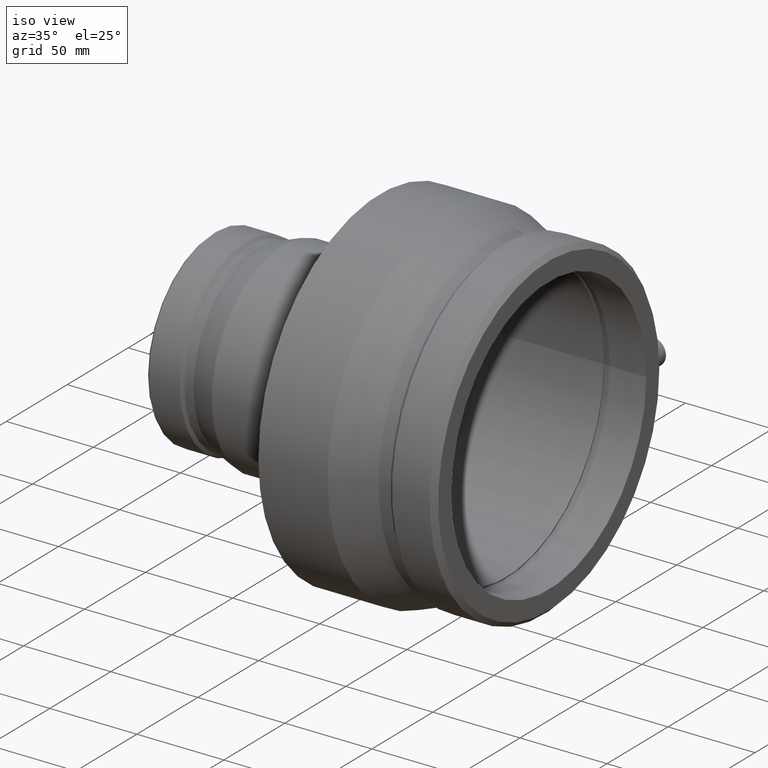
[diagram: clean part render]
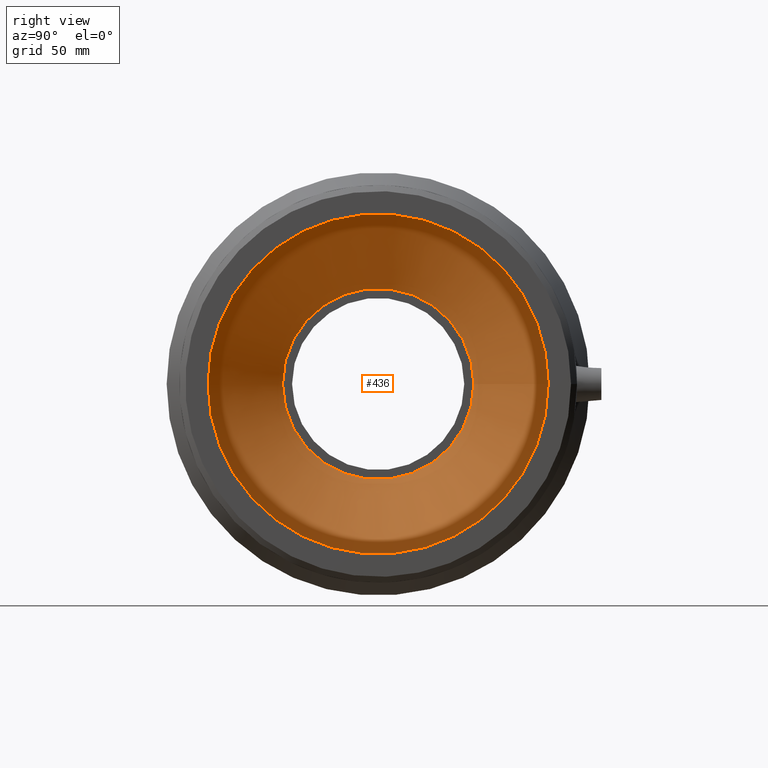
[diagram: tour spotlight — one face highlighted and labeled with its STEP entity id]
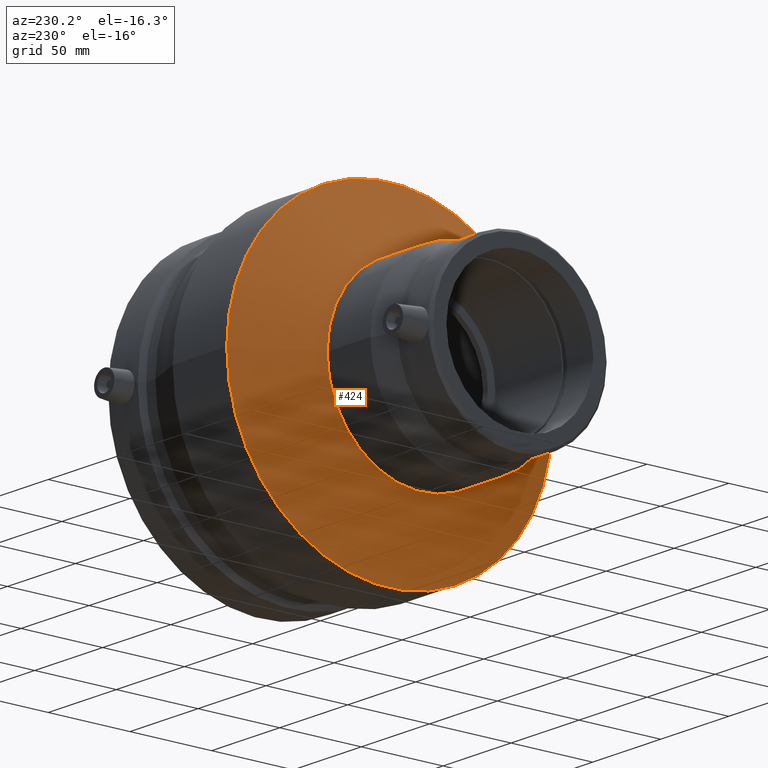
[diagram: tour spotlight — one face highlighted and labeled with its STEP entity id]
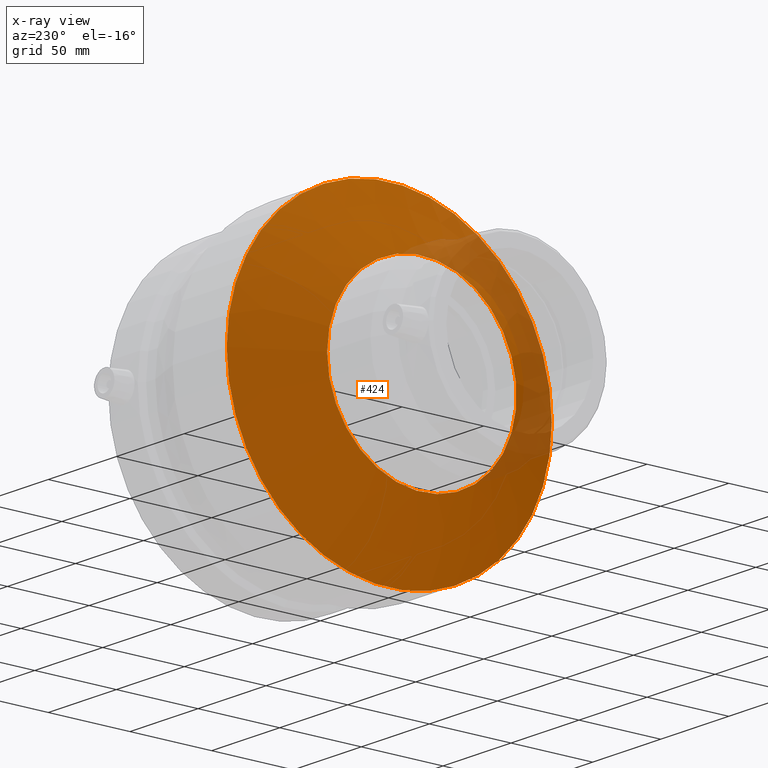
[diagram: x-ray of the same camera — body ghosted, this tour face saturated]
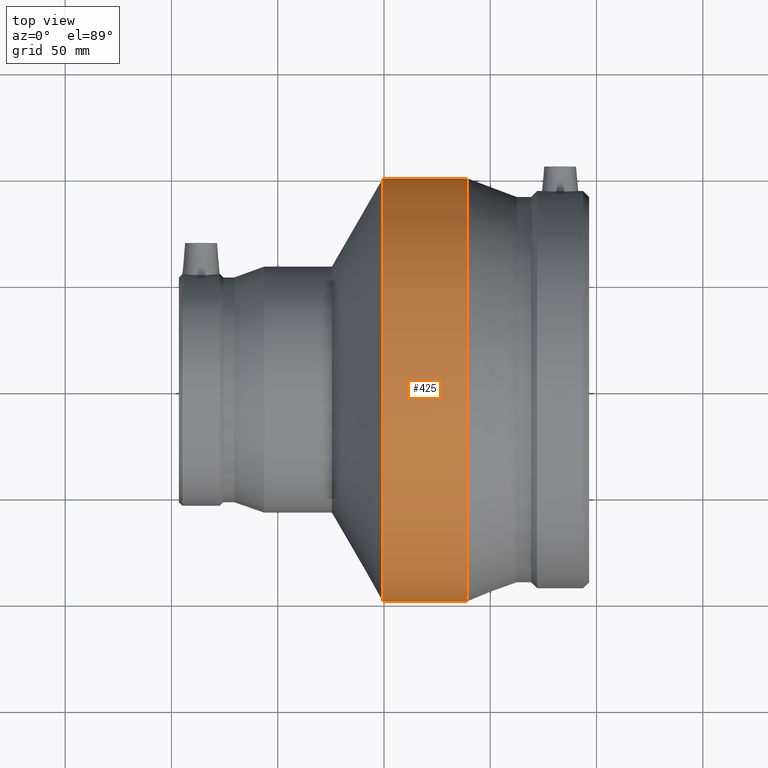
[diagram: tour spotlight — one face highlighted and labeled with its STEP entity id]
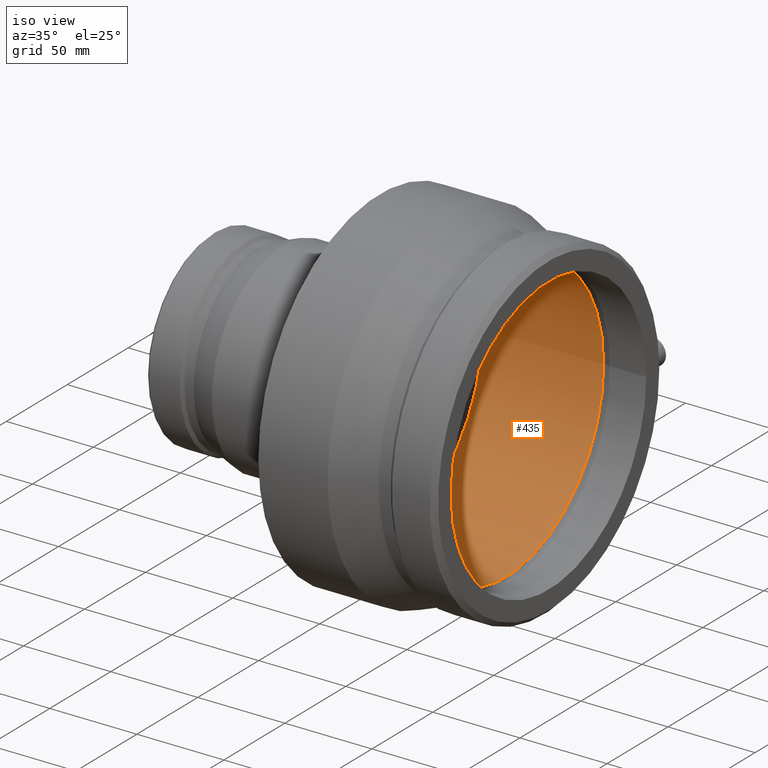
[diagram: tour spotlight — one face highlighted and labeled with its STEP entity id]
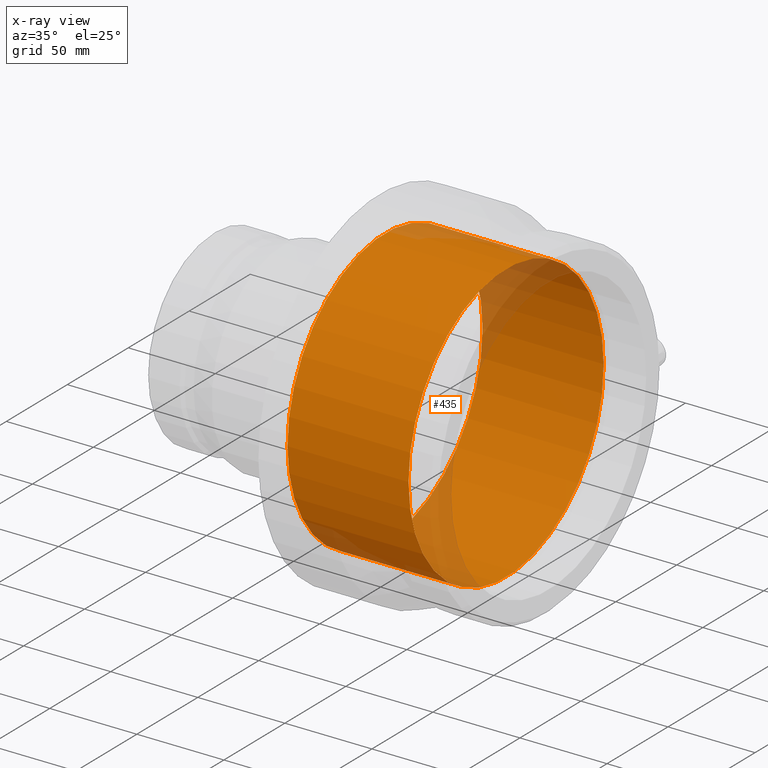
[diagram: x-ray of the same camera — body ghosted, this tour face saturated]
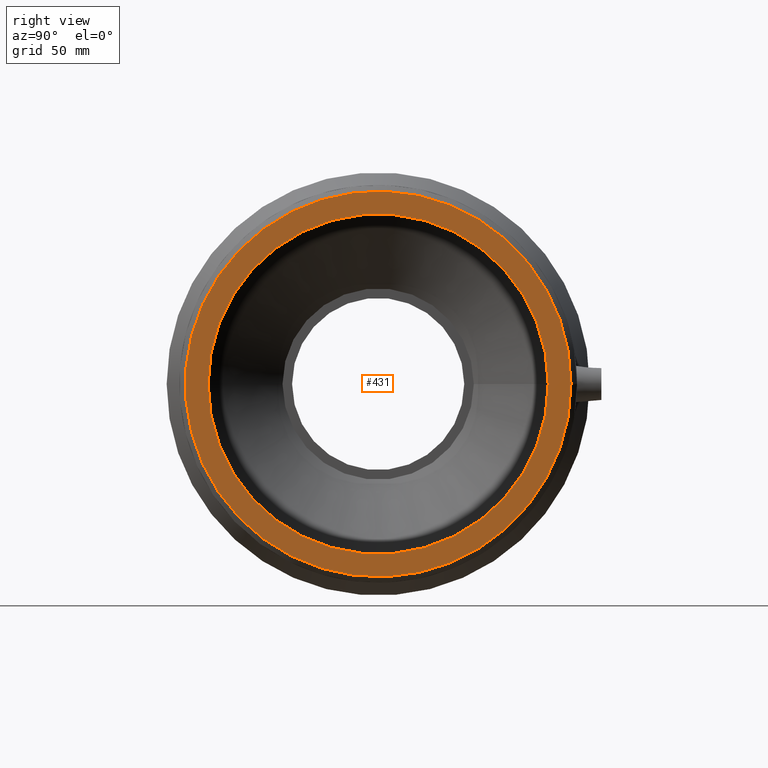
[diagram: tour spotlight — one face highlighted and labeled with its STEP entity id]
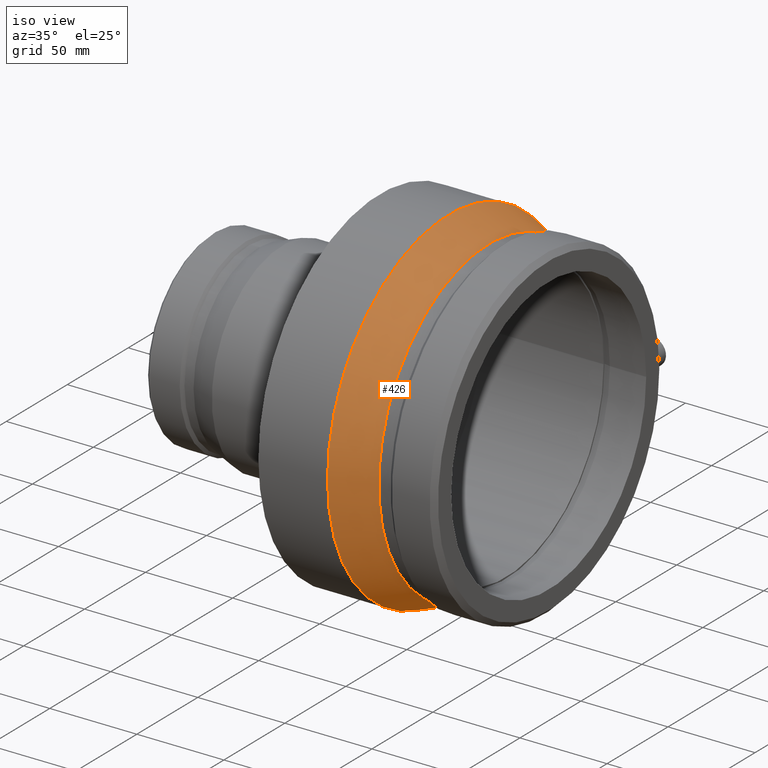
[diagram: tour spotlight — one face highlighted and labeled with its STEP entity id]
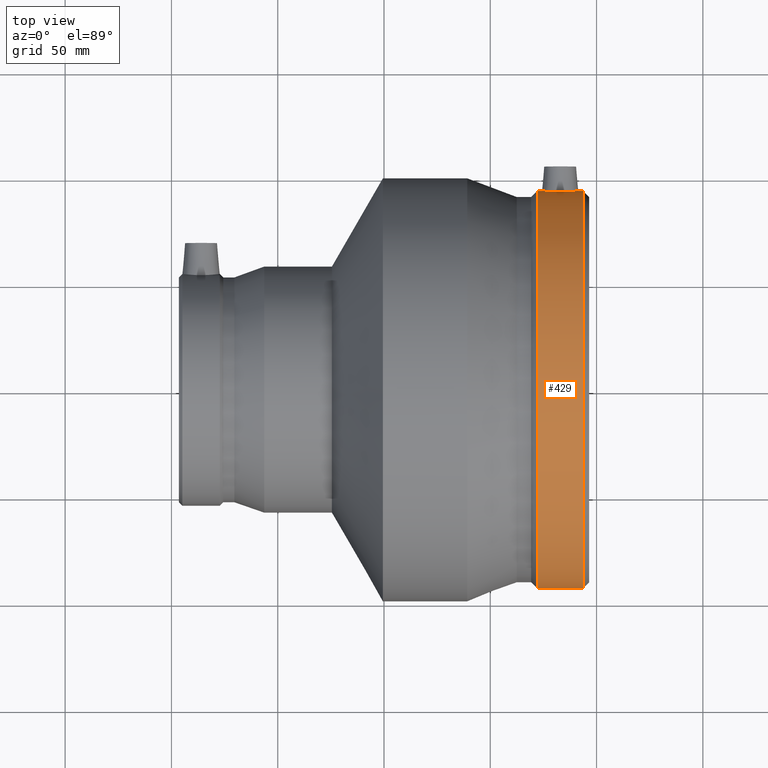
[diagram: tour spotlight — one face highlighted and labeled with its STEP entity id]
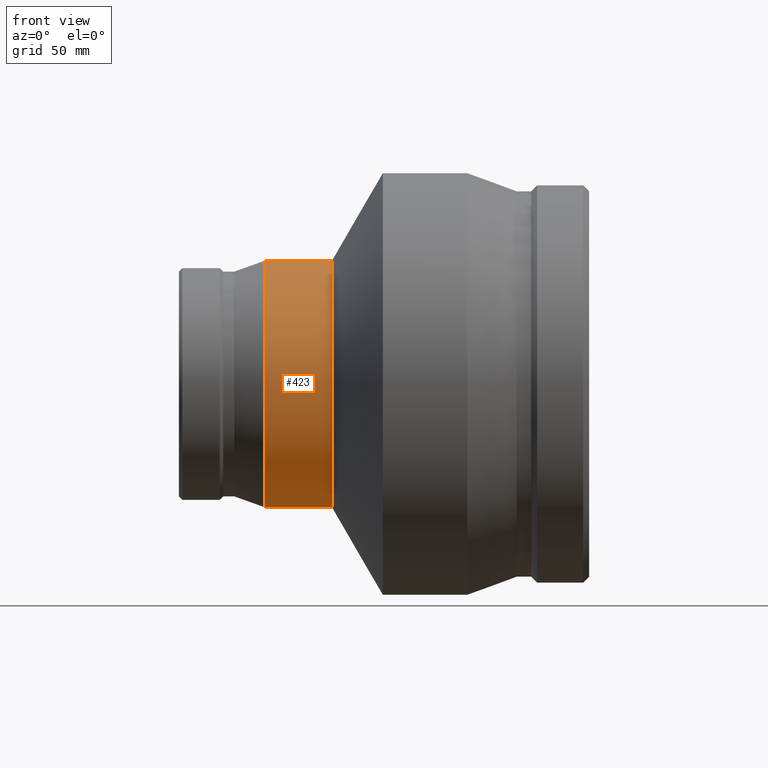
[diagram: tour spotlight — one face highlighted and labeled with its STEP entity id]
A machine part: a face-by-face anatomy tour. The part has 39 B-rep faces; the first image is the clean iso view, then the 8 largest visible faces are spotlighted one at a time (largest first), each with its STEP entity span.

Face 1 — right view, entity #436. In plain terms, the highlighted conical surface has half-angle 56.234 deg.
Definition (entity closure, byte-faithful):
#27=CONICAL_SURFACE('',#507,62.5,56.2344440071421);
#60=FACE_BOUND('',#185,.T.);
#114=FACE_OUTER_BOUND('',#184,.T.);
#184=EDGE_LOOP('',(#377));
#185=EDGE_LOOP('',(#378));
#229=CIRCLE('',#506,80.);
#230=CIRCLE('',#508,45.);
#268=VERTEX_POINT('',#836);
#269=VERTEX_POINT('',#839);
#307=EDGE_CURVE('',#268,#268,#229,.T.);
#308=EDGE_CURVE('',#269,#269,#230,.T.);
#377=ORIENTED_EDGE('',*,*,#307,.T.);
#378=ORIENTED_EDGE('',*,*,#308,.F.);
#436=ADVANCED_FACE('',(#114,#60),#27,.F.);
#506=AXIS2_PLACEMENT_3D('',#837,#644,#645);
#507=AXIS2_PLACEMENT_3D('',#838,#646,#647);
#508=AXIS2_PLACEMENT_3D('',#840,#648,#649);
#644=DIRECTION('center_axis',(1.,0.,0.));
#645=DIRECTION('ref_axis',(0.,0.,-1.));
#646=DIRECTION('center_axis',(1.,0.,0.));
#647=DIRECTION('ref_axis',(0.,1.,0.));
#648=DIRECTION('center_axis',(1.,0.,0.));
#649=DIRECTION('ref_axis',(0.,0.,-1.));
#836=CARTESIAN_POINT('',(2.5,80.,0.));
#837=CARTESIAN_POINT('Origin',(2.5,0.,0.));
#838=CARTESIAN_POINT('Origin',(-9.2,0.,0.));
#839=CARTESIAN_POINT('',(-20.9,45.,0.));
#840=CARTESIAN_POINT('Origin',(-20.9,0.,0.));

Face 2 — auxiliary view, entity #424. An x-ray twin of the same camera follows (body ghosted, this face saturated) — the face is partly hidden behind the body. In plain terms, the highlighted conical surface has half-angle 60 deg.
Definition (entity closure, byte-faithful):
#22=CONICAL_SURFACE('',#483,78.75,60.0000000000001);
#47=FACE_BOUND('',#160,.T.);
#102=FACE_OUTER_BOUND('',#159,.T.);
#159=EDGE_LOOP('',(#352));
#160=EDGE_LOOP('',(#353));
#217=CIRCLE('',#482,58.);
#218=CIRCLE('',#484,99.5);
#256=VERTEX_POINT('',#800);
#257=VERTEX_POINT('',#803);
#295=EDGE_CURVE('',#256,#256,#217,.T.);
#296=EDGE_CURVE('',#257,#257,#218,.T.);
#352=ORIENTED_EDGE('',*,*,#295,.T.);
#353=ORIENTED_EDGE('',*,*,#296,.F.);
#424=ADVANCED_FACE('',(#102,#47),#22,.T.);
#482=AXIS2_PLACEMENT_3D('',#801,#596,#597);
#483=AXIS2_PLACEMENT_3D('',#802,#598,#599);
#484=AXIS2_PLACEMENT_3D('',#804,#600,#601);
#596=DIRECTION('center_axis',(1.,0.,0.));
#597=DIRECTION('ref_axis',(0.,0.,-1.));
#598=DIRECTION('center_axis',(1.,0.,0.));
#599=DIRECTION('ref_axis',(0.,1.,0.));
#600=DIRECTION('center_axis',(1.,0.,0.));
#601=DIRECTION('ref_axis',(0.,0.,-1.));
#800=CARTESIAN_POINT('',(-24.5,58.,0.));
#801=CARTESIAN_POINT('Origin',(-24.5,0.,0.));
#802=CARTESIAN_POINT('Origin',(-12.5199819143153,0.,0.));
#803=CARTESIAN_POINT('',(-0.539963828630564,99.5,0.));
#804=CARTESIAN_POINT('Origin',(-0.539963828630565,0.,0.));

Face 3 — top view, entity #425. In plain terms, the highlighted cylindrical surface (bore or boss wall) has radius 99.5 mm, axis along (1, 0, 0).
Definition (entity closure, byte-faithful):
#48=FACE_BOUND('',#162,.T.);
#75=CYLINDRICAL_SURFACE('',#485,99.5);
#103=FACE_OUTER_BOUND('',#161,.T.);
#161=EDGE_LOOP('',(#354));
#162=EDGE_LOOP('',(#355));
#218=CIRCLE('',#484,99.5);
#219=CIRCLE('',#486,99.5);
#257=VERTEX_POINT('',#803);
#258=VERTEX_POINT('',#806);
#296=EDGE_CURVE('',#257,#257,#218,.T.);
#297=EDGE_CURVE('',#258,#258,#219,.T.);
#354=ORIENTED_EDGE('',*,*,#296,.T.);
#355=ORIENTED_EDGE('',*,*,#297,.F.);
#425=ADVANCED_FACE('',(#103,#48),#75,.T.);
#484=AXIS2_PLACEMENT_3D('',#804,#600,#601);
#485=AXIS2_PLACEMENT_3D('',#805,#602,#603);
#486=AXIS2_PLACEMENT_3D('',#807,#604,#605);
#600=DIRECTION('center_axis',(1.,0.,0.));
#601=DIRECTION('ref_axis',(0.,0.,-1.));
#602=DIRECTION('center_axis',(1.,0.,0.));
#603=DIRECTION('ref_axis',(0.,1.,0.));
#604=DIRECTION('center_axis',(1.,0.,0.));
#605=DIRECTION('ref_axis',(0.,0.,-1.));
#803=CARTESIAN_POINT('',(-0.539963828630564,99.5,0.));
#804=CARTESIAN_POINT('Origin',(-0.539963828630565,0.,0.));
#805=CARTESIAN_POINT('Origin',(19.3097939527349,0.,0.));
#806=CARTESIAN_POINT('',(39.1595517341003,99.5,0.));
#807=CARTESIAN_POINT('Origin',(39.1595517341003,0.,0.));

Face 4 — iso view, entity #435. An x-ray twin of the same camera follows (body ghosted, this face saturated) — the face is partly hidden behind the body. In plain terms, the highlighted cylindrical surface (bore or boss wall) has radius 80 mm, axis along (1, 0, 0).
Definition (entity closure, byte-faithful):
#59=FACE_BOUND('',#183,.T.);
#79=CYLINDRICAL_SURFACE('',#505,80.);
#113=FACE_OUTER_BOUND('',#182,.T.);
#182=EDGE_LOOP('',(#375));
#183=EDGE_LOOP('',(#376));
#228=CIRCLE('',#504,80.);
#229=CIRCLE('',#506,80.);
#267=VERTEX_POINT('',#833);
#268=VERTEX_POINT('',#836);
#306=EDGE_CURVE('',#267,#267,#228,.T.);
#307=EDGE_CURVE('',#268,#268,#229,.T.);
#375=ORIENTED_EDGE('',*,*,#306,.T.);
#376=ORIENTED_EDGE('',*,*,#307,.F.);
#435=ADVANCED_FACE('',(#113,#59),#79,.F.);
#504=AXIS2_PLACEMENT_3D('',#834,#640,#641);
#505=AXIS2_PLACEMENT_3D('',#835,#642,#643);
#506=AXIS2_PLACEMENT_3D('',#837,#644,#645);
#640=DIRECTION('center_axis',(1.,0.,0.));
#641=DIRECTION('ref_axis',(0.,0.,-1.));
#642=DIRECTION('center_axis',(1.,0.,0.));
#643=DIRECTION('ref_axis',(0.,1.,0.));
#644=DIRECTION('center_axis',(1.,0.,0.));
#645=DIRECTION('ref_axis',(0.,0.,-1.));
#833=CARTESIAN_POINT('',(72.0459,80.,0.));
#834=CARTESIAN_POINT('Origin',(72.0459,0.,0.));
#835=CARTESIAN_POINT('Origin',(37.27295,0.,0.));
#836=CARTESIAN_POINT('',(2.5,80.,0.));
#837=CARTESIAN_POINT('Origin',(2.5,0.,0.));

Face 5 — right view, entity #431. In plain terms, the highlighted planar face has unit normal (1, 0, 0).
Definition (entity closure, byte-faithful):
#55=FACE_BOUND('',#175,.T.);
#109=FACE_OUTER_BOUND('',#174,.T.);
#174=EDGE_LOOP('',(#367));
#175=EDGE_LOOP('',(#368));
#224=CIRCLE('',#496,90.7241);
#225=CIRCLE('',#498,80.);
#263=VERTEX_POINT('',#821);
#264=VERTEX_POINT('',#824);
#302=EDGE_CURVE('',#263,#263,#224,.T.);
#303=EDGE_CURVE('',#264,#264,#225,.T.);
#367=ORIENTED_EDGE('',*,*,#302,.T.);
#368=ORIENTED_EDGE('',*,*,#303,.F.);
#400=PLANE('',#497);
#431=ADVANCED_FACE('',(#109,#55),#400,.T.);
#496=AXIS2_PLACEMENT_3D('',#822,#624,#625);
#497=AXIS2_PLACEMENT_3D('',#823,#626,#627);
#498=AXIS2_PLACEMENT_3D('',#825,#628,#629);
#624=DIRECTION('center_axis',(1.,0.,0.));
#625=DIRECTION('ref_axis',(0.,0.,-1.));
#626=DIRECTION('center_axis',(1.,0.,0.));
#627=DIRECTION('ref_axis',(0.,0.,-1.));
#628=DIRECTION('center_axis',(1.,0.,0.));
#629=DIRECTION('ref_axis',(0.,0.,-1.));
#821=CARTESIAN_POINT('',(96.5,90.7241,0.));
#822=CARTESIAN_POINT('Origin',(96.5,0.,0.));
#823=CARTESIAN_POINT('Origin',(96.5,80.,0.));
#824=CARTESIAN_POINT('',(96.5,80.,0.));
#825=CARTESIAN_POINT('Origin',(96.5,0.,0.));

Face 6 — iso view, entity #426. In plain terms, the highlighted conical surface has half-angle 20.667 deg.
Definition (entity closure, byte-faithful):
#23=CONICAL_SURFACE('',#487,95.11205,20.6668482190193);
#49=FACE_BOUND('',#164,.T.);
#104=FACE_OUTER_BOUND('',#163,.T.);
#163=EDGE_LOOP('',(#356));
#164=EDGE_LOOP('',(#357));
#219=CIRCLE('',#486,99.5);
#220=CIRCLE('',#488,90.7241);
#258=VERTEX_POINT('',#806);
#259=VERTEX_POINT('',#809);
#297=EDGE_CURVE('',#258,#258,#219,.T.);
#298=EDGE_CURVE('',#259,#259,#220,.T.);
#356=ORIENTED_EDGE('',*,*,#297,.T.);
#357=ORIENTED_EDGE('',*,*,#298,.F.);
#426=ADVANCED_FACE('',(#104,#49),#23,.T.);
#486=AXIS2_PLACEMENT_3D('',#807,#604,#605);
#487=AXIS2_PLACEMENT_3D('',#808,#606,#607);
#488=AXIS2_PLACEMENT_3D('',#810,#608,#609);
#604=DIRECTION('center_axis',(1.,0.,0.));
#605=DIRECTION('ref_axis',(0.,0.,-1.));
#606=DIRECTION('center_axis',(-1.,0.,0.));
#607=DIRECTION('ref_axis',(0.,1.,0.));
#608=DIRECTION('center_axis',(1.,0.,0.));
#609=DIRECTION('ref_axis',(0.,0.,-1.));
#806=CARTESIAN_POINT('',(39.1595517341003,99.5,0.));
#807=CARTESIAN_POINT('Origin',(39.1595517341003,0.,0.));
#808=CARTESIAN_POINT('Origin',(50.7922758670501,0.,0.));
#809=CARTESIAN_POINT('',(62.425,90.7241,0.));
#810=CARTESIAN_POINT('Origin',(62.425,0.,0.));

Face 7 — top view, entity #429. In plain terms, the highlighted cylindrical surface (bore or boss wall) has radius 93.53 mm, axis along (1, 0, 0).
Definition (entity closure, byte-faithful):
#15=B_SPLINE_CURVE_WITH_KNOTS('',3,(#697,#698,#699,#700,#701,#702,#703,
#704,#705,#706,#707,#708,#709,#710,#711,#712,#713,#714,#715,#716,#717,#718,
#719,#720,#721,#722,#723,#724,#725,#726,#727,#728,#729,#730),
 .UNSPECIFIED.,.T.,.F.,(4,2,2,2,2,2,2,2,2,2,2,2,2,2,2,2,4),(0.,0.321299273640737,
0.642598547281474,0.963601830435798,1.28460511359012,1.60560839674445,1.92661167989877,
2.24791095353951,2.56921022718025,2.89050950082098,3.21180877446172,3.53281205761604,
3.85381534077037,4.17481862392469,4.49582190707902,4.81712118071975,5.13842045436049),
 .UNSPECIFIED.);
#52=FACE_BOUND('',#170,.T.);
#53=FACE_BOUND('',#171,.T.);
#77=CYLINDRICAL_SURFACE('',#493,93.53);
#107=FACE_OUTER_BOUND('',#169,.T.);
#169=EDGE_LOOP('',(#362));
#170=EDGE_LOOP('',(#363));
#171=EDGE_LOOP('',(#364));
#222=CIRCLE('',#492,93.53);
#223=CIRCLE('',#494,93.53);
#243=VERTEX_POINT('',#696);
#261=VERTEX_POINT('',#815);
#262=VERTEX_POINT('',#818);
#282=EDGE_CURVE('',#243,#243,#15,.T.);
#300=EDGE_CURVE('',#261,#261,#222,.T.);
#301=EDGE_CURVE('',#262,#262,#223,.T.);
#362=ORIENTED_EDGE('',*,*,#300,.T.);
#363=ORIENTED_EDGE('',*,*,#282,.T.);
#364=ORIENTED_EDGE('',*,*,#301,.F.);
#429=ADVANCED_FACE('',(#107,#52,#53),#77,.T.);
#492=AXIS2_PLACEMENT_3D('',#816,#616,#617);
#493=AXIS2_PLACEMENT_3D('',#817,#618,#619);
#494=AXIS2_PLACEMENT_3D('',#819,#620,#621);
#616=DIRECTION('center_axis',(1.,0.,0.));
#617=DIRECTION('ref_axis',(0.,0.,-1.));
#618=DIRECTION('center_axis',(1.,0.,0.));
#619=DIRECTION('ref_axis',(0.,1.,0.));
#620=DIRECTION('center_axis',(1.,0.,0.));
#621=DIRECTION('ref_axis',(0.,0.,-1.));
#696=CARTESIAN_POINT('',(82.87,93.1395152259764,-8.5376579616489));
#697=CARTESIAN_POINT('Ctrl Pts',(82.87,93.1395152259764,-8.5376579616489));
#698=CARTESIAN_POINT('Ctrl Pts',(83.9409975788024,93.1395152259764,-8.5376579616489));
#699=CARTESIAN_POINT('Ctrl Pts',(85.0824613714146,93.1600582404902,-8.32208089505998));
#700=CARTESIAN_POINT('Ctrl Pts',(87.1799805475087,93.234048851278,-7.44752409246138));
#701=CARTESIAN_POINT('Ctrl Pts',(88.1360988781804,93.2864093442471,-6.78860369487237));
#702=CARTESIAN_POINT('Ctrl Pts',(89.6435518684584,93.3844234742819,-5.27140357409846));
#703=CARTESIAN_POINT('Ctrl Pts',(90.2959436568173,93.4364552312112,-4.31210940799332));
#704=CARTESIAN_POINT('Ctrl Pts',(91.1609201492139,93.5097589422437,-2.2114330508788));
#705=CARTESIAN_POINT('Ctrl Pts',(91.3734949706423,93.53,-1.07001094384775));
#706=CARTESIAN_POINT('Ctrl Pts',(91.3734949706423,93.53,1.07001094384775));
#707=CARTESIAN_POINT('Ctrl Pts',(91.1609201492139,93.5097589422437,2.2114330508788));
#708=CARTESIAN_POINT('Ctrl Pts',(90.2959436568173,93.4364552312112,4.31210940799332));
#709=CARTESIAN_POINT('Ctrl Pts',(89.6435518684584,93.3844234742819,5.27140357409846));
#710=CARTESIAN_POINT('Ctrl Pts',(88.1360988781804,93.2864093442471,6.78860369487237));
#711=CARTESIAN_POINT('Ctrl Pts',(87.1799805475087,93.234048851278,7.44752409246138));
#712=CARTESIAN_POINT('Ctrl Pts',(85.0824613714146,93.1600582404902,8.32208089505998));
#713=CARTESIAN_POINT('Ctrl Pts',(83.9409975788024,93.1395152259764,8.53765796164889));
#714=CARTESIAN_POINT('Ctrl Pts',(81.7990024211975,93.1395152259764,8.53765796164889));
#715=CARTESIAN_POINT('Ctrl Pts',(80.6575386285854,93.1600582404902,8.32208089505998));
#716=CARTESIAN_POINT('Ctrl Pts',(78.5600194524913,93.234048851278,7.44752409246138));
#717=CARTESIAN_POINT('Ctrl Pts',(77.6039011218196,93.2864093442471,6.78860369487237));
#718=CARTESIAN_POINT('Ctrl Pts',(76.0964481315416,93.3844234742819,5.27140357409846));
#719=CARTESIAN_POINT('Ctrl Pts',(75.4440563431827,93.4364552312112,4.31210940799332));
#720=CARTESIAN_POINT('Ctrl Pts',(74.579079850786,93.5097589422437,2.21143305087881));
#721=CARTESIAN_POINT('Ctrl Pts',(74.3665050293576,93.53,1.07001094384775));
#722=CARTESIAN_POINT('Ctrl Pts',(74.3665050293576,93.53,-1.07001094384775));
#723=CARTESIAN_POINT('Ctrl Pts',(74.579079850786,93.5097589422437,-2.21143305087881));
#724=CARTESIAN_POINT('Ctrl Pts',(75.4440563431827,93.4364552312112,-4.31210940799333));
#725=CARTESIAN_POINT('Ctrl Pts',(76.0964481315416,93.3844234742819,-5.27140357409846));
#726=CARTESIAN_POINT('Ctrl Pts',(77.6039011218196,93.2864093442471,-6.78860369487237));
#727=CARTESIAN_POINT('Ctrl Pts',(78.5600194524913,93.234048851278,-7.44752409246138));
#728=CARTESIAN_POINT('Ctrl Pts',(80.6575386285854,93.1600582404902,-8.32208089505998));
#729=CARTESIAN_POINT('Ctrl Pts',(81.7990024211975,93.1395152259764,-8.5376579616489));
#730=CARTESIAN_POINT('Ctrl Pts',(82.87,93.1395152259764,-8.5376579616489));
#815=CARTESIAN_POINT('',(72.0459,93.53,0.));
#816=CARTESIAN_POINT('Origin',(72.0459,0.,0.));
#817=CARTESIAN_POINT('Origin',(82.87,0.,0.));
#818=CARTESIAN_POINT('',(93.6941,93.53,0.));
#819=CARTESIAN_POINT('Origin',(93.6941,0.,0.));

Face 8 — front view, entity #423. In plain terms, the highlighted cylindrical surface (bore or boss wall) has radius 58 mm, axis along (1, 0, 0).
Definition (entity closure, byte-faithful):
#46=FACE_BOUND('',#158,.T.);
#74=CYLINDRICAL_SURFACE('',#481,58.);
#101=FACE_OUTER_BOUND('',#157,.T.);
#157=EDGE_LOOP('',(#350));
#158=EDGE_LOOP('',(#351));
#216=CIRCLE('',#480,58.);
#217=CIRCLE('',#482,58.);
#255=VERTEX_POINT('',#797);
#256=VERTEX_POINT('',#800);
#294=EDGE_CURVE('',#255,#255,#216,.T.);
#295=EDGE_CURVE('',#256,#256,#217,.T.);
#350=ORIENTED_EDGE('',*,*,#294,.T.);
#351=ORIENTED_EDGE('',*,*,#295,.F.);
#423=ADVANCED_FACE('',(#101,#46),#74,.T.);
#480=AXIS2_PLACEMENT_3D('',#798,#592,#593);
#481=AXIS2_PLACEMENT_3D('',#799,#594,#595);
#482=AXIS2_PLACEMENT_3D('',#801,#596,#597);
#592=DIRECTION('center_axis',(1.,0.,0.));
#593=DIRECTION('ref_axis',(0.,0.,-1.));
#594=DIRECTION('center_axis',(1.,0.,0.));
#595=DIRECTION('ref_axis',(0.,1.,0.));
#596=DIRECTION('center_axis',(1.,0.,0.));
#597=DIRECTION('ref_axis',(0.,0.,-1.));
#797=CARTESIAN_POINT('',(-56.3450045130379,58.,0.));
#798=CARTESIAN_POINT('Origin',(-56.3450045130379,0.,0.));
#799=CARTESIAN_POINT('Origin',(-40.4225022565189,0.,0.));
#800=CARTESIAN_POINT('',(-24.5,58.,0.));
#801=CARTESIAN_POINT('Origin',(-24.5,0.,0.));